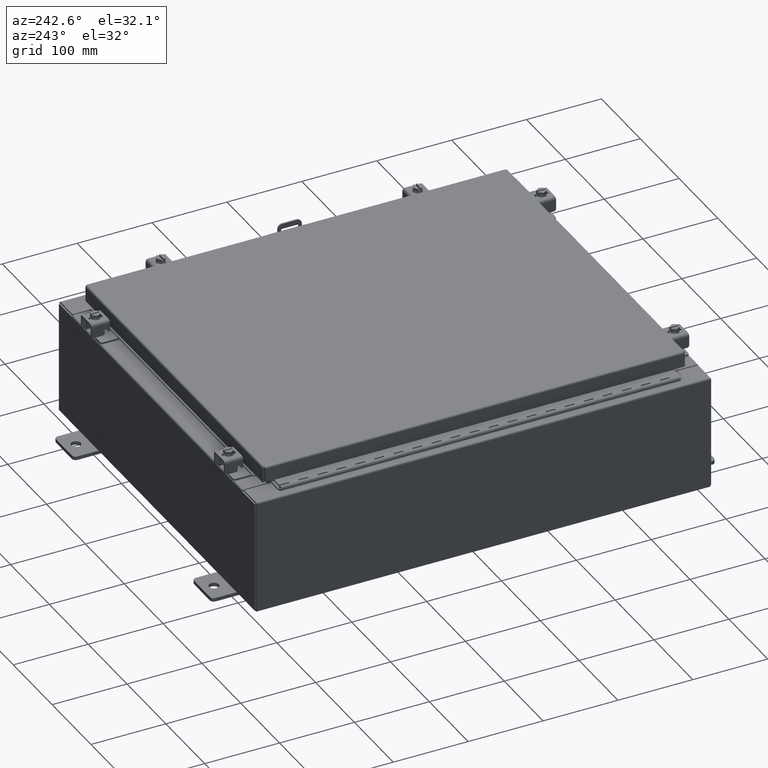
[diagram: clean part render]
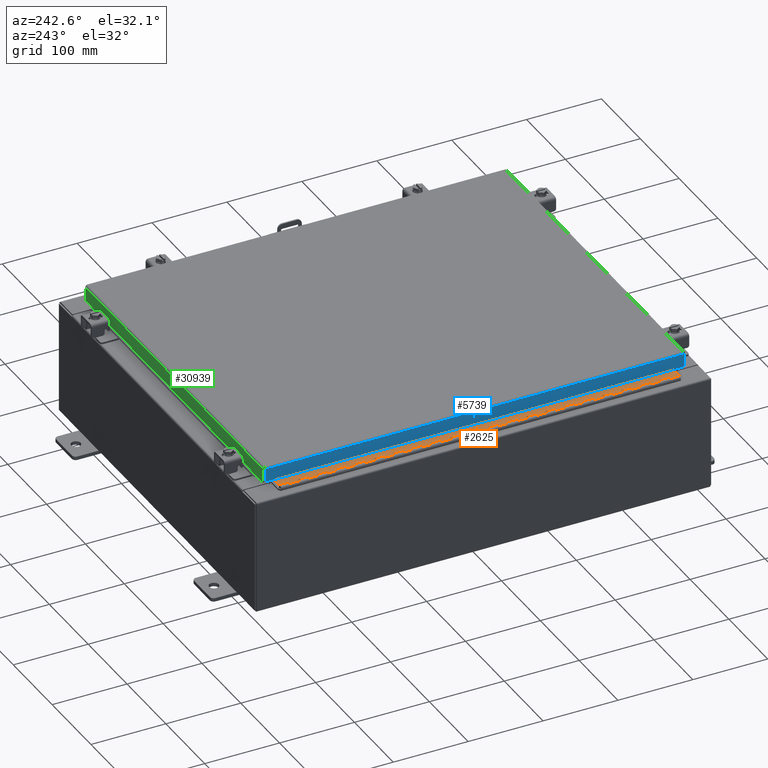
[diagram: same view with three faces highlighted in distinct colors, each labeled with its STEP entity id]
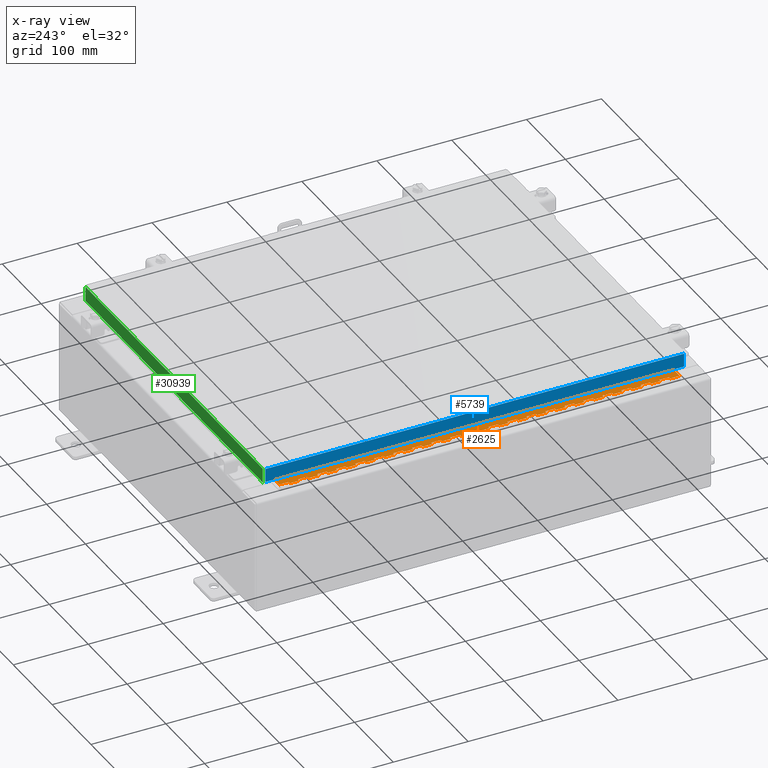
[diagram: x-ray of the same camera — body ghosted, the three highlighted faces saturated]
A machine part, auxiliary view with three faces highlighted in distinct colors.
The next image is the same camera in x-ray (body ghosted, the three faces saturated) — at least one of them is partly hidden behind the body in this view.
Their STEP definitions:

[orange] entity #2625 — the highlighted planar face has unit normal (-0, -0, 1).
#82 = VERTEX_POINT ( 'NONE', #17717 ) ;
#104 = CARTESIAN_POINT ( 'NONE',  ( -0.6869999999999973900, 0.8004999999999995500, -0.5000000000000000000 ) ) ;
#109 = ORIENTED_EDGE ( 'NONE', *, *, #12002, .T. ) ;
#116 = ORIENTED_EDGE ( 'NONE', *, *, #10477, .F. ) ;
#129 = CARTESIAN_POINT ( 'NONE',  ( -0.6869999999999978300, 0.6754999999999996600, 0.0000000000000000000 ) ) ;
#318 = VECTOR ( 'NONE', #21751, 39.37007874015748100 ) ;
#429 = EDGE_CURVE ( 'NONE', #20451, #3969, #29820, .T. ) ;
#453 = DIRECTION ( 'NONE',  ( 0.0000000000000000000, -0.0000000000000000000, -1.000000000000000000 ) ) ;
#523 = CARTESIAN_POINT ( 'NONE',  ( -0.6870000000000022800, -0.6245000000000003900, -21.00000000000000000 ) ) ;
#595 = VECTOR ( 'NONE', #26511, 39.37007874015748100 ) ;
#689 = CARTESIAN_POINT ( 'NONE',  ( -0.6869999999999973900, 0.8004999999999995500, -5.000000000000000000 ) ) ;
#727 = EDGE_CURVE ( 'NONE', #5754, #7995, #6377, .T. ) ;
#733 = CARTESIAN_POINT ( 'NONE',  ( -0.6869999999999978300, 0.6754999999999996600, -21.00000000000000000 ) ) ;
#791 = VECTOR ( 'NONE', #27098, 39.37007874015748100 ) ;
#871 = LINE ( 'NONE', #22071, #6847 ) ;
#920 = EDGE_CURVE ( 'NONE', #26896, #14308, #26615, .T. ) ;
#947 = ORIENTED_EDGE ( 'NONE', *, *, #7994, .F. ) ;
#1006 = LINE ( 'NONE', #32380, #26846 ) ;
#1047 = CARTESIAN_POINT ( 'NONE',  ( -0.6869999999999982800, 0.5504999999999997700, -11.99999999999999800 ) ) ;
#1053 = ORIENTED_EDGE ( 'NONE', *, *, #31830, .T. ) ;
#1064 = VECTOR ( 'NONE', #1115, 39.37007874015748100 ) ;
#1080 = DIRECTION ( 'NONE',  ( 0.0000000000000000000, 0.0000000000000000000, 1.000000000000000000 ) ) ;
#1087 = DIRECTION ( 'NONE',  ( 1.000000000000000000, -3.369016658928398200E-015, 0.0000000000000000000 ) ) ;
#1101 = DIRECTION ( 'NONE',  ( 3.389037039080723100E-015, 1.000000000000000000, -0.0000000000000000000 ) ) ;
#1115 = DIRECTION ( 'NONE',  ( -3.389037039080723100E-015, -1.000000000000000000, 0.0000000000000000000 ) ) ;
#1129 = CARTESIAN_POINT ( 'NONE',  ( -0.6869999999999982800, 0.5504999999999997700, -11.50000000000000000 ) ) ;
#1132 = CARTESIAN_POINT ( 'NONE',  ( -0.6869999999999982800, 0.5504999999999997700, -12.49999999999999800 ) ) ;
#1149 = LINE ( 'NONE', #32333, #13736 ) ;
#1262 = ORIENTED_EDGE ( 'NONE', *, *, #31102, .F. ) ;
#1287 = EDGE_LOOP ( 'NONE', ( #11579, #14761, #32210, #23919, #7231, #15053, #24107, #19546, #7020, #15214, #16476, #14268, #7577, #11960, #1812, #26353, #24284, #27470, #9643, #11283, #19907, #13981, #15574, #9474, #20440, #16105, #25557, #8910, #9159, #10681, #21164, #4917, #30003, #25385, #2277, #10596, #3959, #6846, #26360, #31843, #3833, #1622, #16870, #20763, #109, #11249, #5897, #11346, #3736, #30151, #1262, #23256, #25523, #23307, #23640, #31339, #21921, #11529, #25622, #18699, #1053, #31162, #3927, #28021, #12771, #7601, #5394, #21275, #11817, #28179, #21238, #947, #13286, #116, #25630, #17548, #21900, #2956, #14585, #32314, #21624, #31311, #8700, #2901, #13915, #26899 ) ) ;
#1360 = LINE ( 'NONE', #16342, #27186 ) ;
#1405 = VECTOR ( 'NONE', #8386, 39.37007874015748100 ) ;
#1416 = VERTEX_POINT ( 'NONE', #4723 ) ;
#1444 = CARTESIAN_POINT ( 'NONE',  ( -0.6869999999999982800, 0.5504999999999997700, -9.500000000000000000 ) ) ;
#1537 = CARTESIAN_POINT ( 'NONE',  ( -0.6869999999999982800, 0.5504999999999997700, -14.00000000000000000 ) ) ;
#1559 = EDGE_CURVE ( 'NONE', #18858, #25938, #23635, .T. ) ;
#1575 = PLANE ( 'NONE',  #1868 ) ;
#1578 = LINE ( 'NONE', #12197, #9871 ) ;
#1593 = EDGE_CURVE ( 'NONE', #30430, #14153, #16243, .T. ) ;
#1622 = ORIENTED_EDGE ( 'NONE', *, *, #22213, .F. ) ;
#1633 = DIRECTION ( 'NONE',  ( 0.0000000000000000000, -0.0000000000000000000, -1.000000000000000000 ) ) ;
#1783 = VERTEX_POINT ( 'NONE', #10621 ) ;
#1812 = ORIENTED_EDGE ( 'NONE', *, *, #27320, .F. ) ;
#1868 = AXIS2_PLACEMENT_3D ( 'NONE', #27535, #1087, #27888 ) ;
#1873 = LINE ( 'NONE', #11159, #1064 ) ;
#1909 = LINE ( 'NONE', #29385, #20262 ) ;
#1934 = LINE ( 'NONE', #11588, #27734 ) ;
#1958 = CARTESIAN_POINT ( 'NONE',  ( -0.6869999999999973900, 0.8004999999999995500, -17.50000000000000000 ) ) ;
#1987 = CARTESIAN_POINT ( 'NONE',  ( -0.6869999999999982800, 0.5504999999999997700, -10.50000000000000000 ) ) ;
#1988 = VERTEX_POINT ( 'NONE', #26819 ) ;
#2001 = LINE ( 'NONE', #5379, #6363 ) ;
#2002 = EDGE_CURVE ( 'NONE', #12756, #5217, #12752, .T. ) ;
#2025 = VERTEX_POINT ( 'NONE', #24079 ) ;
#2034 = LINE ( 'NONE', #5321, #8742 ) ;
#2054 = LINE ( 'NONE', #5136, #8764 ) ;
#2068 = LINE ( 'NONE', #26827, #27856 ) ;
#2075 = DIRECTION ( 'NONE',  ( 3.389037039080723100E-015, 1.000000000000000000, -0.0000000000000000000 ) ) ;
#2127 = EDGE_CURVE ( 'NONE', #8420, #7711, #21234, .T. ) ;
#2225 = LINE ( 'NONE', #14680, #14764 ) ;
#2276 = CARTESIAN_POINT ( 'NONE',  ( -0.6869999999999978300, 0.6754999999999996600, -11.99999999999999800 ) ) ;
#2277 = ORIENTED_EDGE ( 'NONE', *, *, #20782, .F. ) ;
#2625 = ADVANCED_FACE ( 'NONE', ( #15396 ), #1575, .T. ) ;
#2766 = LINE ( 'NONE', #7369, #21864 ) ;
#2860 = CARTESIAN_POINT ( 'NONE',  ( -0.6869999999999978300, 0.6754999999999996600, -21.00000000000000000 ) ) ;
#2901 = ORIENTED_EDGE ( 'NONE', *, *, #5903, .F. ) ;
#2956 = ORIENTED_EDGE ( 'NONE', *, *, #26282, .F. ) ;
#2973 = EDGE_CURVE ( 'NONE', #7648, #27906, #6039, .T. ) ;
#2990 = CARTESIAN_POINT ( 'NONE',  ( -0.6869999999999973900, 0.8004999999999995500, -17.00000000000000000 ) ) ;
#3051 = CARTESIAN_POINT ( 'NONE',  ( -0.6869999999999973900, 0.8004999999999995500, -2.000000000000000000 ) ) ;
#3052 = VECTOR ( 'NONE', #1080, 39.37007874015748100 ) ;
#3308 = CARTESIAN_POINT ( 'NONE',  ( -0.6869999999999982800, 0.5504999999999997700, -6.499999999999999100 ) ) ;
#3335 = VERTEX_POINT ( 'NONE', #16467 ) ;
#3430 = EDGE_CURVE ( 'NONE', #1416, #13391, #30994, .T. ) ;
#3452 = DIRECTION ( 'NONE',  ( 3.389037039080723100E-015, 1.000000000000000000, -0.0000000000000000000 ) ) ;
#3459 = VERTEX_POINT ( 'NONE', #8965 ) ;
#3482 = DIRECTION ( 'NONE',  ( 0.0000000000000000000, -0.0000000000000000000, -1.000000000000000000 ) ) ;
#3636 = DIRECTION ( 'NONE',  ( 0.0000000000000000000, 0.0000000000000000000, 1.000000000000000000 ) ) ;
#3724 = CARTESIAN_POINT ( 'NONE',  ( -0.6869999999999973900, 0.8004999999999995500, -1.499999999999999800 ) ) ;
#3736 = ORIENTED_EDGE ( 'NONE', *, *, #7110, .T. ) ;
#3833 = ORIENTED_EDGE ( 'NONE', *, *, #31563, .T. ) ;
#3872 = VERTEX_POINT ( 'NONE', #15693 ) ;
#3920 = LINE ( 'NONE', #104, #30528 ) ;
#3927 = ORIENTED_EDGE ( 'NONE', *, *, #14952, .F. ) ;
#3959 = ORIENTED_EDGE ( 'NONE', *, *, #8798, .T. ) ;
#3961 = VERTEX_POINT ( 'NONE', #17507 ) ;
#3969 = VERTEX_POINT ( 'NONE', #15029 ) ;
#3991 = CARTESIAN_POINT ( 'NONE',  ( -0.6869999999999982800, 0.5504999999999997700, -20.50000000000000400 ) ) ;
#4007 = VECTOR ( 'NONE', #26998, 39.37007874015748100 ) ;
#4018 = DIRECTION ( 'NONE',  ( 0.0000000000000000000, 0.0000000000000000000, 1.000000000000000000 ) ) ;
#4066 = LINE ( 'NONE', #5142, #29873 ) ;
#4103 = DIRECTION ( 'NONE',  ( -3.389037039080723100E-015, -1.000000000000000000, 0.0000000000000000000 ) ) ;
#4106 = EDGE_CURVE ( 'NONE', #26328, #1783, #6809, .T. ) ;
#4222 = EDGE_CURVE ( 'NONE', #20451, #23697, #2034, .T. ) ;
#4311 = VECTOR ( 'NONE', #21571, 39.37007874015748100 ) ;
#4360 = CARTESIAN_POINT ( 'NONE',  ( -0.6869999999999978300, 0.6754999999999996600, -13.50000000000000000 ) ) ;
#4476 = DIRECTION ( 'NONE',  ( 0.0000000000000000000, -0.0000000000000000000, -1.000000000000000000 ) ) ;
#4510 = CARTESIAN_POINT ( 'NONE',  ( -0.6869999999999982800, 0.5504999999999997700, -18.50000000000000000 ) ) ;
#4556 = LINE ( 'NONE', #23421, #28753 ) ;
#4617 = DIRECTION ( 'NONE',  ( 0.0000000000000000000, -0.0000000000000000000, -1.000000000000000000 ) ) ;
#4694 = VECTOR ( 'NONE', #31712, 39.37007874015748100 ) ;
#4723 = CARTESIAN_POINT ( 'NONE',  ( -0.6869999999999982800, 0.5504999999999997700, -10.00000000000000000 ) ) ;
#4822 = DIRECTION ( 'NONE',  ( 3.389037039080723100E-015, 1.000000000000000000, -0.0000000000000000000 ) ) ;
#4828 = EDGE_CURVE ( 'NONE', #4863, #13878, #2001, .T. ) ;
#4863 = VERTEX_POINT ( 'NONE', #25845 ) ;
#4880 = VERTEX_POINT ( 'NONE', #18400 ) ;
#4885 = VECTOR ( 'NONE', #1633, 39.37007874015748100 ) ;
#4917 = ORIENTED_EDGE ( 'NONE', *, *, #30533, .F. ) ;
#5037 = VECTOR ( 'NONE', #7068, 39.37007874015748100 ) ;
#5076 = VECTOR ( 'NONE', #13149, 39.37007874015748100 ) ;
#5136 = CARTESIAN_POINT ( 'NONE',  ( -0.6869999999999982800, 0.5504999999999997700, -11.50000000000000000 ) ) ;
#5142 = CARTESIAN_POINT ( 'NONE',  ( -0.6870000000000022800, -0.6245000000000003900, 0.0000000000000000000 ) ) ;
#5179 = LINE ( 'NONE', #28248, #30960 ) ;
#5217 = VERTEX_POINT ( 'NONE', #13836 ) ;
#5234 = CARTESIAN_POINT ( 'NONE',  ( -0.6869999999999978300, 0.6754999999999996600, -8.000000000000000000 ) ) ;
#5312 = LINE ( 'NONE', #523, #11197 ) ;
#5321 = CARTESIAN_POINT ( 'NONE',  ( -0.6869999999999973900, 0.8004999999999995500, -5.500000000000000000 ) ) ;
#5379 = CARTESIAN_POINT ( 'NONE',  ( -0.6869999999999973900, 0.8004999999999995500, -1.000000000000000000 ) ) ;
#5394 = ORIENTED_EDGE ( 'NONE', *, *, #32330, .F. ) ;
#5469 = CARTESIAN_POINT ( 'NONE',  ( -0.6869999999999982800, 0.5504999999999997700, -15.50000000000000000 ) ) ;
#5488 = LINE ( 'NONE', #11753, #4694 ) ;
#5513 = VECTOR ( 'NONE', #27359, 39.37007874015748100 ) ;
#5561 = EDGE_CURVE ( 'NONE', #11612, #6688, #20692, .T. ) ;
#5622 = VERTEX_POINT ( 'NONE', #16464 ) ;
#5754 = VERTEX_POINT ( 'NONE', #12048 ) ;
#5783 = DIRECTION ( 'NONE',  ( 3.389037039080723100E-015, 1.000000000000000000, -0.0000000000000000000 ) ) ;
#5790 = VERTEX_POINT ( 'NONE', #29601 ) ;
#5859 = EDGE_CURVE ( 'NONE', #8725, #14308, #25386, .T. ) ;
#5871 = LINE ( 'NONE', #15605, #5076 ) ;
#5897 = ORIENTED_EDGE ( 'NONE', *, *, #7070, .F. ) ;
#5903 = EDGE_CURVE ( 'NONE', #12980, #30775, #3920, .T. ) ;
#6010 = VERTEX_POINT ( 'NONE', #15568 ) ;
#6039 = LINE ( 'NONE', #16054, #24316 ) ;
#6046 = EDGE_CURVE ( 'NONE', #26194, #23392, #13316, .T. ) ;
#6155 = LINE ( 'NONE', #25507, #25240 ) ;
#6311 = DIRECTION ( 'NONE',  ( 0.0000000000000000000, 0.0000000000000000000, 1.000000000000000000 ) ) ;
#6363 = VECTOR ( 'NONE', #7909, 39.37007874015748100 ) ;
#6377 = LINE ( 'NONE', #19990, #32128 ) ;
#6569 = DIRECTION ( 'NONE',  ( 3.389037039080723100E-015, 1.000000000000000000, -0.0000000000000000000 ) ) ;
#6651 = VECTOR ( 'NONE', #4018, 39.37007874015748100 ) ;
#6688 = VERTEX_POINT ( 'NONE', #20958 ) ;
#6772 = VECTOR ( 'NONE', #24668, 39.37007874015748100 ) ;
#6788 = EDGE_CURVE ( 'NONE', #15205, #3335, #27682, .T. ) ;
#6805 = VERTEX_POINT ( 'NONE', #31395 ) ;
#6809 = LINE ( 'NONE', #1958, #25875 ) ;
#6840 = DIRECTION ( 'NONE',  ( 0.0000000000000000000, 0.0000000000000000000, 1.000000000000000000 ) ) ;
#6846 = ORIENTED_EDGE ( 'NONE', *, *, #32126, .F. ) ;
#6847 = VECTOR ( 'NONE', #24593, 39.37007874015748100 ) ;
#6884 = CARTESIAN_POINT ( 'NONE',  ( -0.6869999999999973900, 0.8004999999999995500, -2.500000000000000000 ) ) ;
#6900 = VERTEX_POINT ( 'NONE', #11668 ) ;
#6948 = VECTOR ( 'NONE', #22881, 39.37007874015748100 ) ;
#6976 = VECTOR ( 'NONE', #12845, 39.37007874015748100 ) ;
#7001 = CARTESIAN_POINT ( 'NONE',  ( -0.6869999999999982800, 0.5504999999999997700, -8.500000000000000000 ) ) ;
#7002 = VECTOR ( 'NONE', #5783, 39.37007874015748100 ) ;
#7020 = ORIENTED_EDGE ( 'NONE', *, *, #12902, .T. ) ;
#7068 = DIRECTION ( 'NONE',  ( -3.389037039080723100E-015, -1.000000000000000000, 0.0000000000000000000 ) ) ;
#7070 = EDGE_CURVE ( 'NONE', #8314, #1416, #20607, .T. ) ;
#7110 = EDGE_CURVE ( 'NONE', #16994, #6010, #19820, .T. ) ;
#7152 = EDGE_CURVE ( 'NONE', #14546, #5622, #11707, .T. ) ;
#7181 = VERTEX_POINT ( 'NONE', #14662 ) ;
#7231 = ORIENTED_EDGE ( 'NONE', *, *, #920, .T. ) ;
#7266 = CARTESIAN_POINT ( 'NONE',  ( -0.6869999999999978300, 0.6754999999999996600, -21.00000000000000000 ) ) ;
#7369 = CARTESIAN_POINT ( 'NONE',  ( -0.6869999999999973900, 0.8004999999999995500, -19.00000000000000000 ) ) ;
#7376 = EDGE_CURVE ( 'NONE', #26328, #6688, #18640, .T. ) ;
#7411 = VECTOR ( 'NONE', #14133, 39.37007874015748100 ) ;
#7577 = ORIENTED_EDGE ( 'NONE', *, *, #31134, .T. ) ;
#7601 = ORIENTED_EDGE ( 'NONE', *, *, #11780, .F. ) ;
#7648 = VERTEX_POINT ( 'NONE', #21345 ) ;
#7676 = LINE ( 'NONE', #25462, #13513 ) ;
#7690 = LINE ( 'NONE', #22640, #13523 ) ;
#7700 = CARTESIAN_POINT ( 'NONE',  ( -0.6869999999999978300, 0.6754999999999996600, -9.500000000000000000 ) ) ;
#7711 = VERTEX_POINT ( 'NONE', #24094 ) ;
#7742 = LINE ( 'NONE', #21151, #20143 ) ;
#7756 = CARTESIAN_POINT ( 'NONE',  ( -0.6869999999999978300, 0.6754999999999996600, -20.50000000000000400 ) ) ;
#7757 = CARTESIAN_POINT ( 'NONE',  ( -0.6869999999999982800, 0.5504999999999997700, -16.50000000000000000 ) ) ;
#7829 = VECTOR ( 'NONE', #6311, 39.37007874015748100 ) ;
#7890 = EDGE_CURVE ( 'NONE', #14153, #7181, #12834, .T. ) ;
#7909 = DIRECTION ( 'NONE',  ( 3.389037039080723100E-015, 1.000000000000000000, -0.0000000000000000000 ) ) ;
#7994 = EDGE_CURVE ( 'NONE', #6900, #15277, #7690, .T. ) ;
#7995 = VERTEX_POINT ( 'NONE', #5234 ) ;
#8005 = CARTESIAN_POINT ( 'NONE',  ( -0.6869999999999973900, 0.8004999999999995500, -8.500000000000000000 ) ) ;
#8058 = VECTOR ( 'NONE', #13138, 39.37007874015748100 ) ;
#8063 = CARTESIAN_POINT ( 'NONE',  ( -0.6869999999999982800, 0.5504999999999997700, -17.99999999999999600 ) ) ;
#8074 = DIRECTION ( 'NONE',  ( 0.0000000000000000000, 0.0000000000000000000, 1.000000000000000000 ) ) ;
#8179 = CARTESIAN_POINT ( 'NONE',  ( -0.6869999999999982800, 0.5504999999999997700, -7.499999999999999100 ) ) ;
#8239 = EDGE_CURVE ( 'NONE', #13270, #31309, #21237, .T. ) ;
#8314 = VERTEX_POINT ( 'NONE', #1444 ) ;
#8386 = DIRECTION ( 'NONE',  ( 0.0000000000000000000, -0.0000000000000000000, -1.000000000000000000 ) ) ;
#8420 = VERTEX_POINT ( 'NONE', #31975 ) ;
#8469 = DIRECTION ( 'NONE',  ( -3.389037039080723100E-015, -1.000000000000000000, 0.0000000000000000000 ) ) ;
#8582 = CARTESIAN_POINT ( 'NONE',  ( -0.6869999999999982800, 0.5504999999999997700, -20.50000000000000400 ) ) ;
#8688 = CARTESIAN_POINT ( 'NONE',  ( -0.6869999999999982800, 0.5504999999999997700, -6.000000000000000900 ) ) ;
#8700 = ORIENTED_EDGE ( 'NONE', *, *, #13819, .F. ) ;
#8725 = VERTEX_POINT ( 'NONE', #17220 ) ;
#8742 = VECTOR ( 'NONE', #25564, 39.37007874015748100 ) ;
#8764 = VECTOR ( 'NONE', #17521, 39.37007874015748100 ) ;
#8798 = EDGE_CURVE ( 'NONE', #18858, #14694, #24731, .T. ) ;
#8810 = EDGE_CURVE ( 'NONE', #3459, #11624, #4066, .T. ) ;
#8910 = ORIENTED_EDGE ( 'NONE', *, *, #16281, .F. ) ;
#8933 = CARTESIAN_POINT ( 'NONE',  ( -0.6869999999999978300, 0.6754999999999996600, -21.00000000000000000 ) ) ;
#8948 = LINE ( 'NONE', #18573, #3052 ) ;
#8965 = CARTESIAN_POINT ( 'NONE',  ( -0.6869999999999998300, 0.07549999999999991400, 0.0000000000000000000 ) ) ;
#9021 = CARTESIAN_POINT ( 'NONE',  ( -0.6869999999999978300, 0.6754999999999996600, -15.50000000000000000 ) ) ;
#9159 = ORIENTED_EDGE ( 'NONE', *, *, #10207, .T. ) ;
#9259 = VECTOR ( 'NONE', #21715, 39.37007874015748100 ) ;
#9387 = DIRECTION ( 'NONE',  ( 0.0000000000000000000, 0.0000000000000000000, 1.000000000000000000 ) ) ;
#9437 = DIRECTION ( 'NONE',  ( 0.0000000000000000000, -0.0000000000000000000, -1.000000000000000000 ) ) ;
#9474 = ORIENTED_EDGE ( 'NONE', *, *, #7152, .F. ) ;
#9489 = LINE ( 'NONE', #23591, #28578 ) ;
#9643 = ORIENTED_EDGE ( 'NONE', *, *, #15611, .F. ) ;
#9693 = CARTESIAN_POINT ( 'NONE',  ( -0.6869999999999978300, 0.6754999999999996600, -14.99999999999999800 ) ) ;
#9712 = CARTESIAN_POINT ( 'NONE',  ( -0.6869999999999978300, 0.6754999999999996600, -21.00000000000000000 ) ) ;
#9871 = VECTOR ( 'NONE', #2075, 39.37007874015748100 ) ;
#9916 = VECTOR ( 'NONE', #10700, 39.37007874015748100 ) ;
#9978 = VERTEX_POINT ( 'NONE', #7757 ) ;
#10088 = DIRECTION ( 'NONE',  ( 0.0000000000000000000, 0.0000000000000000000, 1.000000000000000000 ) ) ;
#10148 = DIRECTION ( 'NONE',  ( 0.0000000000000000000, -0.0000000000000000000, -1.000000000000000000 ) ) ;
#10207 = EDGE_CURVE ( 'NONE', #23509, #5217, #9489, .T. ) ;
#10235 = VECTOR ( 'NONE', #4617, 39.37007874015748100 ) ;
#10477 = EDGE_CURVE ( 'NONE', #23583, #29234, #1578, .T. ) ;
#10596 = ORIENTED_EDGE ( 'NONE', *, *, #1559, .F. ) ;
#10621 = CARTESIAN_POINT ( 'NONE',  ( -0.6869999999999982800, 0.5504999999999997700, -17.50000000000000000 ) ) ;
#10633 = CARTESIAN_POINT ( 'NONE',  ( -0.6869999999999978300, 0.6754999999999996600, -5.500000000000000000 ) ) ;
#10675 = CARTESIAN_POINT ( 'NONE',  ( -0.6869999999999973900, 0.8004999999999995500, -16.50000000000000000 ) ) ;
#10681 = ORIENTED_EDGE ( 'NONE', *, *, #2002, .F. ) ;
#10691 = LINE ( 'NONE', #1987, #4007 ) ;
#10700 = DIRECTION ( 'NONE',  ( 0.0000000000000000000, 0.0000000000000000000, 1.000000000000000000 ) ) ;
#10808 = CARTESIAN_POINT ( 'NONE',  ( -0.6869999999999978300, 0.6754999999999996600, -21.00000000000000000 ) ) ;
#10824 = LINE ( 'NONE', #31723, #24035 ) ;
#10967 = CARTESIAN_POINT ( 'NONE',  ( -0.6869999999999973900, 0.8004999999999995500, -10.50000000000000000 ) ) ;
#11025 = LINE ( 'NONE', #17124, #10235 ) ;
#11066 = CARTESIAN_POINT ( 'NONE',  ( -0.6869999999999978300, 0.6754999999999996600, -11.50000000000000000 ) ) ;
#11144 = VECTOR ( 'NONE', #22678, 39.37007874015748100 ) ;
#11159 = CARTESIAN_POINT ( 'NONE',  ( -0.6869999999999973900, 0.8004999999999995500, -13.50000000000000000 ) ) ;
#11197 = VECTOR ( 'NONE', #20520, 39.37007874015748100 ) ;
#11249 = ORIENTED_EDGE ( 'NONE', *, *, #3430, .F. ) ;
#11283 = ORIENTED_EDGE ( 'NONE', *, *, #21595, .F. ) ;
#11297 = CARTESIAN_POINT ( 'NONE',  ( -0.6869999999999973900, 0.8004999999999995500, -10.00000000000000000 ) ) ;
#11305 = VECTOR ( 'NONE', #20856, 39.37007874015748100 ) ;
#11346 = ORIENTED_EDGE ( 'NONE', *, *, #12895, .F. ) ;
#11349 = CARTESIAN_POINT ( 'NONE',  ( -0.6869999999999982800, 0.5504999999999997700, -14.49999999999999800 ) ) ;
#11355 = LINE ( 'NONE', #689, #30496 ) ;
#11418 = DIRECTION ( 'NONE',  ( -3.389037039080723100E-015, -1.000000000000000000, 0.0000000000000000000 ) ) ;
#11529 = ORIENTED_EDGE ( 'NONE', *, *, #2973, .F. ) ;
#11579 = ORIENTED_EDGE ( 'NONE', *, *, #31155, .F. ) ;
#11588 = CARTESIAN_POINT ( 'NONE',  ( -0.6869999999999973900, 0.8004999999999995500, -17.99999999999999600 ) ) ;
#11612 = VERTEX_POINT ( 'NONE', #30167 ) ;
#11624 = VERTEX_POINT ( 'NONE', #129 ) ;
#11668 = CARTESIAN_POINT ( 'NONE',  ( -0.6869999999999978300, 0.6754999999999996600, -3.500000000000000000 ) ) ;
#11707 = LINE ( 'NONE', #24452, #5037 ) ;
#11709 = LINE ( 'NONE', #25036, #16736 ) ;
#11753 = CARTESIAN_POINT ( 'NONE',  ( -0.6869999999999982800, 0.5504999999999997700, -18.50000000000000000 ) ) ;
#11780 = EDGE_CURVE ( 'NONE', #16014, #3969, #11355, .T. ) ;
#11817 = ORIENTED_EDGE ( 'NONE', *, *, #15786, .T. ) ;
#11930 = LINE ( 'NONE', #20183, #11144 ) ;
#11936 = EDGE_CURVE ( 'NONE', #23148, #26598, #21406, .T. ) ;
#11958 = LINE ( 'NONE', #3051, #31079 ) ;
#11960 = ORIENTED_EDGE ( 'NONE', *, *, #28776, .F. ) ;
#11974 = VECTOR ( 'NONE', #25521, 39.37007874015748100 ) ;
#12002 = EDGE_CURVE ( 'NONE', #17949, #13391, #25726, .T. ) ;
#12009 = CARTESIAN_POINT ( 'NONE',  ( -0.6869999999999973900, 0.8004999999999995500, -12.99999999999999800 ) ) ;
#12029 = VERTEX_POINT ( 'NONE', #26594 ) ;
#12048 = CARTESIAN_POINT ( 'NONE',  ( -0.6869999999999978300, 0.6754999999999996600, -8.500000000000000000 ) ) ;
#12050 = DIRECTION ( 'NONE',  ( 3.389037039080723100E-015, 1.000000000000000000, -0.0000000000000000000 ) ) ;
#12088 = VECTOR ( 'NONE', #22793, 39.37007874015748100 ) ;
#12169 = DIRECTION ( 'NONE',  ( -3.389037039080723100E-015, -1.000000000000000000, 0.0000000000000000000 ) ) ;
#12197 = CARTESIAN_POINT ( 'NONE',  ( -0.6869999999999973900, 0.8004999999999995500, -2.999999999999999600 ) ) ;
#12267 = VERTEX_POINT ( 'NONE', #20001 ) ;
#12437 = DIRECTION ( 'NONE',  ( -3.389037039080723100E-015, -1.000000000000000000, 0.0000000000000000000 ) ) ;
#12605 = VECTOR ( 'NONE', #22207, 39.37007874015748100 ) ;
#12617 = VERTEX_POINT ( 'NONE', #28875 ) ;
#12659 = VERTEX_POINT ( 'NONE', #21495 ) ;
#12739 = VECTOR ( 'NONE', #453, 39.37007874015748100 ) ;
#12752 = LINE ( 'NONE', #24503, #11974 ) ;
#12756 = VERTEX_POINT ( 'NONE', #1537 ) ;
#12771 = ORIENTED_EDGE ( 'NONE', *, *, #429, .T. ) ;
#12834 = LINE ( 'NONE', #24724, #12605 ) ;
#12845 = DIRECTION ( 'NONE',  ( 0.0000000000000000000, 0.0000000000000000000, 1.000000000000000000 ) ) ;
#12895 = EDGE_CURVE ( 'NONE', #16994, #8314, #2225, .T. ) ;
#12902 = EDGE_CURVE ( 'NONE', #23148, #17473, #15526, .T. ) ;
#12980 = VERTEX_POINT ( 'NONE', #32478 ) ;
#13023 = CARTESIAN_POINT ( 'NONE',  ( -0.6869999999999978300, 0.6754999999999996600, -12.49999999999999800 ) ) ;
#13138 = DIRECTION ( 'NONE',  ( -3.389037039080723100E-015, -1.000000000000000000, 0.0000000000000000000 ) ) ;
#13149 = DIRECTION ( 'NONE',  ( 3.389037039080723100E-015, 1.000000000000000000, -0.0000000000000000000 ) ) ;
#13238 = CARTESIAN_POINT ( 'NONE',  ( -0.6869999999999978300, 0.6754999999999996600, -1.499999999999999800 ) ) ;
#13255 = CARTESIAN_POINT ( 'NONE',  ( -0.6869999999999982800, 0.5504999999999997700, -2.999999999999999600 ) ) ;
#13270 = VERTEX_POINT ( 'NONE', #8688 ) ;
#13286 = ORIENTED_EDGE ( 'NONE', *, *, #25644, .T. ) ;
#13316 = LINE ( 'NONE', #30683, #19104 ) ;
#13347 = DIRECTION ( 'NONE',  ( 0.0000000000000000000, -0.0000000000000000000, -1.000000000000000000 ) ) ;
#13391 = VERTEX_POINT ( 'NONE', #19188 ) ;
#13469 = VERTEX_POINT ( 'NONE', #22007 ) ;
#13513 = VECTOR ( 'NONE', #8074, 39.37007874015748100 ) ;
#13523 = VECTOR ( 'NONE', #30258, 39.37007874015748100 ) ;
#13631 = CARTESIAN_POINT ( 'NONE',  ( -0.6869999999999982800, 0.5504999999999997700, -14.49999999999999800 ) ) ;
#13634 = VERTEX_POINT ( 'NONE', #22658 ) ;
#13736 = VECTOR ( 'NONE', #32439, 39.37007874015748100 ) ;
#13740 = CARTESIAN_POINT ( 'NONE',  ( -0.6869999999999973900, 0.8004999999999995500, -6.000000000000000900 ) ) ;
#13819 = EDGE_CURVE ( 'NONE', #30775, #4863, #4556, .T. ) ;
#13836 = CARTESIAN_POINT ( 'NONE',  ( -0.6869999999999978300, 0.6754999999999996600, -14.00000000000000000 ) ) ;
#13878 = VERTEX_POINT ( 'NONE', #31127 ) ;
#13901 = CARTESIAN_POINT ( 'NONE',  ( -0.6869999999999982800, 0.5504999999999997700, -5.000000000000000000 ) ) ;
#13915 = ORIENTED_EDGE ( 'NONE', *, *, #15631, .T. ) ;
#13959 = LINE ( 'NONE', #20784, #18974 ) ;
#13981 = ORIENTED_EDGE ( 'NONE', *, *, #26735, .F. ) ;
#14133 = DIRECTION ( 'NONE',  ( 0.0000000000000000000, -0.0000000000000000000, -1.000000000000000000 ) ) ;
#14153 = VERTEX_POINT ( 'NONE', #24681 ) ;
#14206 = CARTESIAN_POINT ( 'NONE',  ( -0.6869999999999982800, 0.5504999999999997700, -8.000000000000000000 ) ) ;
#14268 = ORIENTED_EDGE ( 'NONE', *, *, #6046, .F. ) ;
#14308 = VERTEX_POINT ( 'NONE', #20407 ) ;
#14311 = VERTEX_POINT ( 'NONE', #8063 ) ;
#14328 = LINE ( 'NONE', #8005, #6948 ) ;
#14341 = EDGE_CURVE ( 'NONE', #7711, #25985, #31556, .T. ) ;
#14389 = DIRECTION ( 'NONE',  ( -3.389037039080723100E-015, -1.000000000000000000, 0.0000000000000000000 ) ) ;
#14495 = EDGE_CURVE ( 'NONE', #25985, #7995, #7742, .T. ) ;
#14546 = VERTEX_POINT ( 'NONE', #9021 ) ;
#14585 = ORIENTED_EDGE ( 'NONE', *, *, #7890, .F. ) ;
#14662 = CARTESIAN_POINT ( 'NONE',  ( -0.6869999999999982800, 0.5504999999999997700, -2.000000000000000000 ) ) ;
#14680 = CARTESIAN_POINT ( 'NONE',  ( -0.6869999999999973900, 0.8004999999999995500, -9.500000000000000000 ) ) ;
#14694 = VERTEX_POINT ( 'NONE', #2276 ) ;
#14742 = LINE ( 'NONE', #3308, #1405 ) ;
#14757 = DIRECTION ( 'NONE',  ( 0.0000000000000000000, 0.0000000000000000000, 1.000000000000000000 ) ) ;
#14761 = ORIENTED_EDGE ( 'NONE', *, *, #19792, .T. ) ;
#14764 = VECTOR ( 'NONE', #32148, 39.37007874015748100 ) ;
#14923 = CARTESIAN_POINT ( 'NONE',  ( -0.6869999999999973900, 0.8004999999999995500, -7.499999999999999100 ) ) ;
#14941 = VECTOR ( 'NONE', #28087, 39.37007874015748100 ) ;
#14952 = EDGE_CURVE ( 'NONE', #23697, #13270, #5179, .T. ) ;
#15029 = CARTESIAN_POINT ( 'NONE',  ( -0.6869999999999978300, 0.6754999999999996600, -5.000000000000000000 ) ) ;
#15053 = ORIENTED_EDGE ( 'NONE', *, *, #5859, .F. ) ;
#15168 = VECTOR ( 'NONE', #25152, 39.37007874015748100 ) ;
#15193 = CARTESIAN_POINT ( 'NONE',  ( -0.6869999999999973900, 0.8004999999999995500, -11.00000000000000000 ) ) ;
#15205 = VERTEX_POINT ( 'NONE', #4360 ) ;
#15214 = ORIENTED_EDGE ( 'NONE', *, *, #16238, .F. ) ;
#15277 = VERTEX_POINT ( 'NONE', #32185 ) ;
#15300 = VECTOR ( 'NONE', #30435, 39.37007874015748100 ) ;
#15396 = FACE_OUTER_BOUND ( 'NONE', #1287, .T. ) ;
#15484 = DIRECTION ( 'NONE',  ( 3.389037039080723100E-015, 1.000000000000000000, -0.0000000000000000000 ) ) ;
#15526 = LINE ( 'NONE', #9712, #20566 ) ;
#15547 = VECTOR ( 'NONE', #16419, 39.37007874015748100 ) ;
#15568 = CARTESIAN_POINT ( 'NONE',  ( -0.6869999999999978300, 0.6754999999999996600, -9.000000000000000000 ) ) ;
#15574 = ORIENTED_EDGE ( 'NONE', *, *, #26257, .F. ) ;
#15605 = CARTESIAN_POINT ( 'NONE',  ( -0.6869999999999973900, 0.8004999999999995500, -14.99999999999999800 ) ) ;
#15611 = EDGE_CURVE ( 'NONE', #9978, #11612, #26630, .T. ) ;
#15630 = DIRECTION ( 'NONE',  ( 3.389037039080723100E-015, 1.000000000000000000, -0.0000000000000000000 ) ) ;
#15631 = EDGE_CURVE ( 'NONE', #12980, #11624, #19963, .T. ) ;
#15650 = CARTESIAN_POINT ( 'NONE',  ( -0.6869999999999978300, 0.6754999999999996600, -2.999999999999999600 ) ) ;
#15693 = CARTESIAN_POINT ( 'NONE',  ( -0.6869999999999982800, 0.5504999999999997700, -19.00000000000000000 ) ) ;
#15737 = CARTESIAN_POINT ( 'NONE',  ( -0.6869999999999978300, 0.6754999999999996600, -6.499999999999999100 ) ) ;
#15786 = EDGE_CURVE ( 'NONE', #17883, #27640, #21896, .T. ) ;
#15873 = DIRECTION ( 'NONE',  ( 0.0000000000000000000, -0.0000000000000000000, -1.000000000000000000 ) ) ;
#15949 = VERTEX_POINT ( 'NONE', #8582 ) ;
#16014 = VERTEX_POINT ( 'NONE', #13901 ) ;
#16054 = CARTESIAN_POINT ( 'NONE',  ( -0.6869999999999973900, 0.8004999999999995500, -7.000000000000000000 ) ) ;
#16057 = LINE ( 'NONE', #15193, #29370 ) ;
#16105 = ORIENTED_EDGE ( 'NONE', *, *, #23564, .F. ) ;
#16186 = EDGE_CURVE ( 'NONE', #12267, #23583, #11025, .T. ) ;
#16238 = EDGE_CURVE ( 'NONE', #3872, #17473, #2766, .T. ) ;
#16243 = LINE ( 'NONE', #3724, #22059 ) ;
#16244 = CARTESIAN_POINT ( 'NONE',  ( -0.6869999999999973900, 0.8004999999999995500, -19.50000000000000000 ) ) ;
#16281 = EDGE_CURVE ( 'NONE', #23509, #19584, #1149, .T. ) ;
#16319 = LINE ( 'NONE', #23490, #11305 ) ;
#16342 = CARTESIAN_POINT ( 'NONE',  ( -0.6869999999999982800, 0.5504999999999997700, -4.500000000000000000 ) ) ;
#16419 = DIRECTION ( 'NONE',  ( 0.0000000000000000000, -0.0000000000000000000, -1.000000000000000000 ) ) ;
#16464 = CARTESIAN_POINT ( 'NONE',  ( -0.6869999999999982800, 0.5504999999999997700, -15.50000000000000000 ) ) ;
#16467 = CARTESIAN_POINT ( 'NONE',  ( -0.6869999999999978300, 0.6754999999999996600, -12.99999999999999800 ) ) ;
#16476 = ORIENTED_EDGE ( 'NONE', *, *, #23339, .F. ) ;
#16587 = CARTESIAN_POINT ( 'NONE',  ( -0.6869999999999978300, 0.6754999999999996600, -7.000000000000000000 ) ) ;
#16677 = VECTOR ( 'NONE', #28078, 39.37007874015748100 ) ;
#16736 = VECTOR ( 'NONE', #10148, 39.37007874015748100 ) ;
#16827 = VECTOR ( 'NONE', #18908, 39.37007874015748100 ) ;
#16870 = ORIENTED_EDGE ( 'NONE', *, *, #21409, .F. ) ;
#16994 = VERTEX_POINT ( 'NONE', #7700 ) ;
#17025 = CARTESIAN_POINT ( 'NONE',  ( -0.6869999999999978300, 0.6754999999999996600, -21.00000000000000000 ) ) ;
#17067 = LINE ( 'NONE', #10967, #28790 ) ;
#17095 = VECTOR ( 'NONE', #15873, 39.37007874015748100 ) ;
#17124 = CARTESIAN_POINT ( 'NONE',  ( -0.6869999999999982800, 0.5504999999999997700, -2.500000000000000000 ) ) ;
#17220 = CARTESIAN_POINT ( 'NONE',  ( -0.6869999999999982800, 0.5504999999999997700, -20.00000000000000000 ) ) ;
#17439 = CARTESIAN_POINT ( 'NONE',  ( -0.6869999999999978300, 0.6754999999999996600, -14.49999999999999800 ) ) ;
#17452 = EDGE_CURVE ( 'NONE', #23681, #20620, #27294, .T. ) ;
#17473 = VERTEX_POINT ( 'NONE', #26928 ) ;
#17507 = CARTESIAN_POINT ( 'NONE',  ( -0.6869999999999982800, 0.5504999999999997700, -16.00000000000000000 ) ) ;
#17521 = DIRECTION ( 'NONE',  ( 0.0000000000000000000, -0.0000000000000000000, -1.000000000000000000 ) ) ;
#17548 = ORIENTED_EDGE ( 'NONE', *, *, #28844, .F. ) ;
#17611 = DIRECTION ( 'NONE',  ( -3.389037039080723100E-015, -1.000000000000000000, 0.0000000000000000000 ) ) ;
#17717 = CARTESIAN_POINT ( 'NONE',  ( -0.6869999999999982800, 0.5504999999999997700, -6.499999999999999100 ) ) ;
#17775 = CARTESIAN_POINT ( 'NONE',  ( -0.6869999999999978300, 0.6754999999999996600, -4.000000000000000000 ) ) ;
#17883 = VERTEX_POINT ( 'NONE', #18791 ) ;
#17884 = EDGE_CURVE ( 'NONE', #19584, #4880, #28845, .T. ) ;
#17949 = VERTEX_POINT ( 'NONE', #29217 ) ;
#18056 = DIRECTION ( 'NONE',  ( 0.0000000000000000000, 0.0000000000000000000, 1.000000000000000000 ) ) ;
#18063 = VECTOR ( 'NONE', #20737, 39.37007874015748100 ) ;
#18228 = VECTOR ( 'NONE', #21837, 39.37007874015748100 ) ;
#18270 = CARTESIAN_POINT ( 'NONE',  ( -0.6869999999999978300, 0.6754999999999996600, -17.99999999999999600 ) ) ;
#18400 = CARTESIAN_POINT ( 'NONE',  ( -0.6869999999999982800, 0.5504999999999997700, -14.99999999999999800 ) ) ;
#18419 = VERTEX_POINT ( 'NONE', #1047 ) ;
#18573 = CARTESIAN_POINT ( 'NONE',  ( -0.6869999999999998300, 0.07549999999999991400, -21.00000000000000000 ) ) ;
#18640 = LINE ( 'NONE', #30296, #12088 ) ;
#18699 = ORIENTED_EDGE ( 'NONE', *, *, #24683, .F. ) ;
#18791 = CARTESIAN_POINT ( 'NONE',  ( -0.6869999999999978300, 0.6754999999999996600, -4.500000000000000000 ) ) ;
#18858 = VERTEX_POINT ( 'NONE', #13023 ) ;
#18908 = DIRECTION ( 'NONE',  ( 0.0000000000000000000, -0.0000000000000000000, -1.000000000000000000 ) ) ;
#18974 = VECTOR ( 'NONE', #20897, 39.37007874015748100 ) ;
#18979 = EDGE_CURVE ( 'NONE', #26896, #15949, #13959, .T. ) ;
#19023 = CARTESIAN_POINT ( 'NONE',  ( -0.6869999999999978300, 0.6754999999999996600, -2.500000000000000000 ) ) ;
#19104 = VECTOR ( 'NONE', #25606, 39.37007874015748100 ) ;
#19105 = CARTESIAN_POINT ( 'NONE',  ( -0.6869999999999982800, 0.5504999999999997700, -17.50000000000000000 ) ) ;
#19188 = CARTESIAN_POINT ( 'NONE',  ( -0.6869999999999978300, 0.6754999999999996600, -10.00000000000000000 ) ) ;
#19209 = DIRECTION ( 'NONE',  ( 0.0000000000000000000, -0.0000000000000000000, -1.000000000000000000 ) ) ;
#19300 = LINE ( 'NONE', #5469, #12739 ) ;
#19315 = CARTESIAN_POINT ( 'NONE',  ( -0.6869999999999978300, 0.6754999999999996600, -21.00000000000000000 ) ) ;
#19401 = LINE ( 'NONE', #22795, #6976 ) ;
#19479 = CARTESIAN_POINT ( 'NONE',  ( -0.6869999999999982800, 0.5504999999999997700, -0.5000000000000000000 ) ) ;
#19546 = ORIENTED_EDGE ( 'NONE', *, *, #11936, .F. ) ;
#19584 = VERTEX_POINT ( 'NONE', #13631 ) ;
#19762 = LINE ( 'NONE', #17025, #595 ) ;
#19792 = EDGE_CURVE ( 'NONE', #12617, #22377, #5312, .T. ) ;
#19820 = LINE ( 'NONE', #29306, #26484 ) ;
#19907 = ORIENTED_EDGE ( 'NONE', *, *, #23449, .T. ) ;
#19908 = VECTOR ( 'NONE', #15630, 39.37007874015748100 ) ;
#19963 = LINE ( 'NONE', #22159, #6772 ) ;
#19990 = CARTESIAN_POINT ( 'NONE',  ( -0.6869999999999978300, 0.6754999999999996600, -21.00000000000000000 ) ) ;
#20001 = CARTESIAN_POINT ( 'NONE',  ( -0.6869999999999982800, 0.5504999999999997700, -2.500000000000000000 ) ) ;
#20143 = VECTOR ( 'NONE', #23692, 39.37007874015748100 ) ;
#20183 = CARTESIAN_POINT ( 'NONE',  ( -0.6869999999999978300, 0.6754999999999996600, -21.00000000000000000 ) ) ;
#20262 = VECTOR ( 'NONE', #9437, 39.37007874015748100 ) ;
#20285 = LINE ( 'NONE', #6884, #318 ) ;
#20407 = CARTESIAN_POINT ( 'NONE',  ( -0.6869999999999978300, 0.6754999999999996600, -20.00000000000000000 ) ) ;
#20410 = LINE ( 'NONE', #10675, #14941 ) ;
#20440 = ORIENTED_EDGE ( 'NONE', *, *, #27613, .T. ) ;
#20451 = VERTEX_POINT ( 'NONE', #10633 ) ;
#20520 = DIRECTION ( 'NONE',  ( 3.369016658928398200E-015, 1.000000000000000000, 0.0000000000000000000 ) ) ;
#20540 = VECTOR ( 'NONE', #12169, 39.37007874015748100 ) ;
#20566 = VECTOR ( 'NONE', #26996, 39.37007874015748100 ) ;
#20607 = LINE ( 'NONE', #29077, #7411 ) ;
#20620 = VERTEX_POINT ( 'NONE', #1129 ) ;
#20646 = CARTESIAN_POINT ( 'NONE',  ( -0.6869999999999973900, 0.8004999999999995500, -9.000000000000000000 ) ) ;
#20692 = LINE ( 'NONE', #2990, #19908 ) ;
#20724 = CARTESIAN_POINT ( 'NONE',  ( -0.6869999999999978300, 0.6754999999999996600, -19.50000000000000000 ) ) ;
#20727 = VECTOR ( 'NONE', #9387, 39.37007874015748100 ) ;
#20737 = DIRECTION ( 'NONE',  ( 0.0000000000000000000, 0.0000000000000000000, 1.000000000000000000 ) ) ;
#20763 = ORIENTED_EDGE ( 'NONE', *, *, #31720, .F. ) ;
#20782 = EDGE_CURVE ( 'NONE', #25938, #6805, #2068, .T. ) ;
#20784 = CARTESIAN_POINT ( 'NONE',  ( -0.6869999999999973900, 0.8004999999999995500, -20.50000000000000400 ) ) ;
#20803 = CARTESIAN_POINT ( 'NONE',  ( -0.6869999999999982800, 0.5504999999999997700, -21.00000000000000000 ) ) ;
#20856 = DIRECTION ( 'NONE',  ( 0.0000000000000000000, 0.0000000000000000000, 1.000000000000000000 ) ) ;
#20897 = DIRECTION ( 'NONE',  ( -3.389037039080723100E-015, -1.000000000000000000, 0.0000000000000000000 ) ) ;
#20958 = CARTESIAN_POINT ( 'NONE',  ( -0.6869999999999978300, 0.6754999999999996600, -17.00000000000000000 ) ) ;
#21151 = CARTESIAN_POINT ( 'NONE',  ( -0.6869999999999973900, 0.8004999999999995500, -8.000000000000000000 ) ) ;
#21164 = ORIENTED_EDGE ( 'NONE', *, *, #30903, .F. ) ;
#21234 = LINE ( 'NONE', #14923, #8058 ) ;
#21237 = LINE ( 'NONE', #13740, #26342 ) ;
#21238 = ORIENTED_EDGE ( 'NONE', *, *, #25604, .F. ) ;
#21260 = VERTEX_POINT ( 'NONE', #19023 ) ;
#21275 = ORIENTED_EDGE ( 'NONE', *, *, #31844, .F. ) ;
#21345 = CARTESIAN_POINT ( 'NONE',  ( -0.6869999999999982800, 0.5504999999999997700, -7.000000000000000000 ) ) ;
#21402 = VECTOR ( 'NONE', #14389, 39.37007874015748100 ) ;
#21406 = LINE ( 'NONE', #16244, #27298 ) ;
#21409 = EDGE_CURVE ( 'NONE', #23291, #23188, #10691, .T. ) ;
#21413 = VECTOR ( 'NONE', #14757, 39.37007874015748100 ) ;
#21428 = CARTESIAN_POINT ( 'NONE',  ( -0.6869999999999978300, 0.6754999999999996600, -21.00000000000000000 ) ) ;
#21495 = CARTESIAN_POINT ( 'NONE',  ( -0.6869999999999978300, 0.6754999999999996600, -16.00000000000000000 ) ) ;
#21571 = DIRECTION ( 'NONE',  ( 0.0000000000000000000, 0.0000000000000000000, 1.000000000000000000 ) ) ;
#21595 = EDGE_CURVE ( 'NONE', #23968, #9978, #20410, .T. ) ;
#21624 = ORIENTED_EDGE ( 'NONE', *, *, #26984, .T. ) ;
#21676 = EDGE_CURVE ( 'NONE', #8420, #27906, #24706, .T. ) ;
#21715 = DIRECTION ( 'NONE',  ( 0.0000000000000000000, 0.0000000000000000000, 1.000000000000000000 ) ) ;
#21751 = DIRECTION ( 'NONE',  ( -3.389037039080723100E-015, -1.000000000000000000, 0.0000000000000000000 ) ) ;
#21757 = LINE ( 'NONE', #22841, #15168 ) ;
#21837 = DIRECTION ( 'NONE',  ( 3.389037039080723100E-015, 1.000000000000000000, -0.0000000000000000000 ) ) ;
#21864 = VECTOR ( 'NONE', #4822, 39.37007874015748100 ) ;
#21896 = LINE ( 'NONE', #2860, #15300 ) ;
#21900 = ORIENTED_EDGE ( 'NONE', *, *, #30050, .T. ) ;
#21921 = ORIENTED_EDGE ( 'NONE', *, *, #21676, .T. ) ;
#22007 = CARTESIAN_POINT ( 'NONE',  ( -0.6869999999999978300, 0.6754999999999996600, -11.00000000000000000 ) ) ;
#22059 = VECTOR ( 'NONE', #11418, 39.37007874015748100 ) ;
#22071 = CARTESIAN_POINT ( 'NONE',  ( -0.6869999999999973900, 0.8004999999999995500, -16.00000000000000000 ) ) ;
#22159 = CARTESIAN_POINT ( 'NONE',  ( -0.6869999999999978300, 0.6754999999999996600, -21.00000000000000000 ) ) ;
#22207 = DIRECTION ( 'NONE',  ( 0.0000000000000000000, -0.0000000000000000000, -1.000000000000000000 ) ) ;
#22213 = EDGE_CURVE ( 'NONE', #23188, #13469, #16057, .T. ) ;
#22377 = VERTEX_POINT ( 'NONE', #20803 ) ;
#22608 = LINE ( 'NONE', #31707, #4311 ) ;
#22640 = CARTESIAN_POINT ( 'NONE',  ( -0.6869999999999973900, 0.8004999999999995500, -3.500000000000000000 ) ) ;
#22647 = CARTESIAN_POINT ( 'NONE',  ( -0.6869999999999978300, 0.6754999999999996600, -18.50000000000000000 ) ) ;
#22658 = CARTESIAN_POINT ( 'NONE',  ( -0.6869999999999978300, 0.6754999999999996600, -2.000000000000000000 ) ) ;
#22678 = DIRECTION ( 'NONE',  ( 0.0000000000000000000, 0.0000000000000000000, 1.000000000000000000 ) ) ;
#22701 = EDGE_CURVE ( 'NONE', #15949, #22377, #24214, .T. ) ;
#22793 = DIRECTION ( 'NONE',  ( 0.0000000000000000000, 0.0000000000000000000, 1.000000000000000000 ) ) ;
#22795 = CARTESIAN_POINT ( 'NONE',  ( -0.6869999999999978300, 0.6754999999999996600, -21.00000000000000000 ) ) ;
#22841 = CARTESIAN_POINT ( 'NONE',  ( -0.6869999999999973900, 0.8004999999999995500, -4.000000000000000000 ) ) ;
#22854 = VECTOR ( 'NONE', #28616, 39.37007874015748100 ) ;
#22881 = DIRECTION ( 'NONE',  ( -3.389037039080723100E-015, -1.000000000000000000, 0.0000000000000000000 ) ) ;
#23148 = VERTEX_POINT ( 'NONE', #20724 ) ;
#23188 = VERTEX_POINT ( 'NONE', #25872 ) ;
#23256 = ORIENTED_EDGE ( 'NONE', *, *, #32083, .F. ) ;
#23291 = VERTEX_POINT ( 'NONE', #31489 ) ;
#23307 = ORIENTED_EDGE ( 'NONE', *, *, #14495, .F. ) ;
#23339 = EDGE_CURVE ( 'NONE', #23392, #3872, #5488, .T. ) ;
#23392 = VERTEX_POINT ( 'NONE', #4510 ) ;
#23421 = CARTESIAN_POINT ( 'NONE',  ( -0.6869999999999982800, 0.5504999999999997700, -0.5000000000000000000 ) ) ;
#23449 = EDGE_CURVE ( 'NONE', #23968, #12659, #30505, .T. ) ;
#23490 = CARTESIAN_POINT ( 'NONE',  ( -0.6869999999999978300, 0.6754999999999996600, -21.00000000000000000 ) ) ;
#23509 = VERTEX_POINT ( 'NONE', #17439 ) ;
#23564 = EDGE_CURVE ( 'NONE', #4880, #31343, #5871, .T. ) ;
#23583 = VERTEX_POINT ( 'NONE', #13255 ) ;
#23591 = CARTESIAN_POINT ( 'NONE',  ( -0.6869999999999978300, 0.6754999999999996600, -21.00000000000000000 ) ) ;
#23635 = LINE ( 'NONE', #29628, #22854 ) ;
#23640 = ORIENTED_EDGE ( 'NONE', *, *, #14341, .F. ) ;
#23681 = VERTEX_POINT ( 'NONE', #11066 ) ;
#23692 = DIRECTION ( 'NONE',  ( 3.389037039080723100E-015, 1.000000000000000000, -0.0000000000000000000 ) ) ;
#23697 = VERTEX_POINT ( 'NONE', #31149 ) ;
#23919 = ORIENTED_EDGE ( 'NONE', *, *, #18979, .F. ) ;
#23968 = VERTEX_POINT ( 'NONE', #32095 ) ;
#24035 = VECTOR ( 'NONE', #19209, 39.37007874015748100 ) ;
#24079 = CARTESIAN_POINT ( 'NONE',  ( -0.6869999999999982800, 0.5504999999999997700, -4.000000000000000000 ) ) ;
#24094 = CARTESIAN_POINT ( 'NONE',  ( -0.6869999999999982800, 0.5504999999999997700, -7.499999999999999100 ) ) ;
#24102 = LINE ( 'NONE', #12009, #18228 ) ;
#24107 = ORIENTED_EDGE ( 'NONE', *, *, #30103, .F. ) ;
#24214 = LINE ( 'NONE', #3991, #16827 ) ;
#24284 = ORIENTED_EDGE ( 'NONE', *, *, #7376, .T. ) ;
#24316 = VECTOR ( 'NONE', #3452, 39.37007874015748100 ) ;
#24452 = CARTESIAN_POINT ( 'NONE',  ( -0.6869999999999973900, 0.8004999999999995500, -15.50000000000000000 ) ) ;
#24503 = CARTESIAN_POINT ( 'NONE',  ( -0.6869999999999973900, 0.8004999999999995500, -14.00000000000000000 ) ) ;
#24575 = EDGE_CURVE ( 'NONE', #6805, #3335, #24102, .T. ) ;
#24593 = DIRECTION ( 'NONE',  ( 3.389037039080723100E-015, 1.000000000000000000, -0.0000000000000000000 ) ) ;
#24668 = DIRECTION ( 'NONE',  ( 0.0000000000000000000, 0.0000000000000000000, 1.000000000000000000 ) ) ;
#24681 = CARTESIAN_POINT ( 'NONE',  ( -0.6869999999999982800, 0.5504999999999997700, -1.499999999999999800 ) ) ;
#24683 = EDGE_CURVE ( 'NONE', #24945, #82, #1006, .T. ) ;
#24706 = LINE ( 'NONE', #733, #18063 ) ;
#24724 = CARTESIAN_POINT ( 'NONE',  ( -0.6869999999999982800, 0.5504999999999997700, -1.499999999999999800 ) ) ;
#24731 = LINE ( 'NONE', #30057, #30668 ) ;
#24945 = VERTEX_POINT ( 'NONE', #15737 ) ;
#24970 = EDGE_CURVE ( 'NONE', #82, #7648, #14742, .T. ) ;
#25036 = CARTESIAN_POINT ( 'NONE',  ( -0.6869999999999982800, 0.5504999999999997700, -13.50000000000000000 ) ) ;
#25152 = DIRECTION ( 'NONE',  ( 3.389037039080723100E-015, 1.000000000000000000, -0.0000000000000000000 ) ) ;
#25240 = VECTOR ( 'NONE', #15484, 39.37007874015748100 ) ;
#25385 = ORIENTED_EDGE ( 'NONE', *, *, #24575, .F. ) ;
#25386 = LINE ( 'NONE', #29920, #5513 ) ;
#25462 = CARTESIAN_POINT ( 'NONE',  ( -0.6869999999999978300, 0.6754999999999996600, -21.00000000000000000 ) ) ;
#25507 = CARTESIAN_POINT ( 'NONE',  ( -0.6869999999999973900, 0.8004999999999995500, -11.99999999999999800 ) ) ;
#25521 = DIRECTION ( 'NONE',  ( 3.389037039080723100E-015, 1.000000000000000000, -0.0000000000000000000 ) ) ;
#25523 = ORIENTED_EDGE ( 'NONE', *, *, #727, .T. ) ;
#25557 = ORIENTED_EDGE ( 'NONE', *, *, #17884, .F. ) ;
#25564 = DIRECTION ( 'NONE',  ( -3.389037039080723100E-015, -1.000000000000000000, 0.0000000000000000000 ) ) ;
#25604 = EDGE_CURVE ( 'NONE', #15277, #2025, #10824, .T. ) ;
#25606 = DIRECTION ( 'NONE',  ( -3.389037039080723100E-015, -1.000000000000000000, 0.0000000000000000000 ) ) ;
#25622 = ORIENTED_EDGE ( 'NONE', *, *, #24970, .F. ) ;
#25630 = ORIENTED_EDGE ( 'NONE', *, *, #16186, .F. ) ;
#25644 = EDGE_CURVE ( 'NONE', #6900, #29234, #29158, .T. ) ;
#25645 = LINE ( 'NONE', #29618, #20540 ) ;
#25726 = LINE ( 'NONE', #21428, #6651 ) ;
#25735 = DIRECTION ( 'NONE',  ( 3.389037039080723100E-015, 1.000000000000000000, -0.0000000000000000000 ) ) ;
#25845 = CARTESIAN_POINT ( 'NONE',  ( -0.6869999999999982800, 0.5504999999999997700, -1.000000000000000000 ) ) ;
#25872 = CARTESIAN_POINT ( 'NONE',  ( -0.6869999999999982800, 0.5504999999999997700, -11.00000000000000000 ) ) ;
#25875 = VECTOR ( 'NONE', #4103, 39.37007874015748100 ) ;
#25938 = VERTEX_POINT ( 'NONE', #1132 ) ;
#25985 = VERTEX_POINT ( 'NONE', #14206 ) ;
#26086 = LINE ( 'NONE', #20646, #7002 ) ;
#26194 = VERTEX_POINT ( 'NONE', #22647 ) ;
#26257 = EDGE_CURVE ( 'NONE', #5622, #3961, #19300, .T. ) ;
#26282 = EDGE_CURVE ( 'NONE', #7181, #13634, #11958, .T. ) ;
#26328 = VERTEX_POINT ( 'NONE', #30691 ) ;
#26342 = VECTOR ( 'NONE', #1101, 39.37007874015748100 ) ;
#26353 = ORIENTED_EDGE ( 'NONE', *, *, #4106, .F. ) ;
#26360 = ORIENTED_EDGE ( 'NONE', *, *, #28129, .F. ) ;
#26484 = VECTOR ( 'NONE', #6840, 39.37007874015748100 ) ;
#26511 = DIRECTION ( 'NONE',  ( 0.0000000000000000000, 0.0000000000000000000, 1.000000000000000000 ) ) ;
#26594 = CARTESIAN_POINT ( 'NONE',  ( -0.6869999999999982800, 0.5504999999999997700, -13.50000000000000000 ) ) ;
#26598 = VERTEX_POINT ( 'NONE', #29123 ) ;
#26615 = LINE ( 'NONE', #29231, #20727 ) ;
#26630 = LINE ( 'NONE', #32146, #791 ) ;
#26735 = EDGE_CURVE ( 'NONE', #3961, #12659, #871, .T. ) ;
#26819 = CARTESIAN_POINT ( 'NONE',  ( -0.6869999999999982800, 0.5504999999999997700, -9.000000000000000000 ) ) ;
#26827 = CARTESIAN_POINT ( 'NONE',  ( -0.6869999999999982800, 0.5504999999999997700, -12.49999999999999800 ) ) ;
#26846 = VECTOR ( 'NONE', #12437, 39.37007874015748100 ) ;
#26879 = CARTESIAN_POINT ( 'NONE',  ( -0.6869999999999978300, 0.6754999999999996600, -6.000000000000000900 ) ) ;
#26896 = VERTEX_POINT ( 'NONE', #7756 ) ;
#26899 = ORIENTED_EDGE ( 'NONE', *, *, #8810, .F. ) ;
#26928 = CARTESIAN_POINT ( 'NONE',  ( -0.6869999999999978300, 0.6754999999999996600, -19.00000000000000000 ) ) ;
#26984 = EDGE_CURVE ( 'NONE', #30430, #13878, #7676, .T. ) ;
#26996 = DIRECTION ( 'NONE',  ( 0.0000000000000000000, 0.0000000000000000000, 1.000000000000000000 ) ) ;
#26998 = DIRECTION ( 'NONE',  ( 0.0000000000000000000, -0.0000000000000000000, -1.000000000000000000 ) ) ;
#27098 = DIRECTION ( 'NONE',  ( 0.0000000000000000000, -0.0000000000000000000, -1.000000000000000000 ) ) ;
#27186 = VECTOR ( 'NONE', #28798, 39.37007874015748100 ) ;
#27294 = LINE ( 'NONE', #31890, #21402 ) ;
#27298 = VECTOR ( 'NONE', #28571, 39.37007874015748100 ) ;
#27320 = EDGE_CURVE ( 'NONE', #1783, #14311, #32225, .T. ) ;
#27359 = DIRECTION ( 'NONE',  ( 3.389037039080723100E-015, 1.000000000000000000, -0.0000000000000000000 ) ) ;
#27470 = ORIENTED_EDGE ( 'NONE', *, *, #5561, .F. ) ;
#27535 = CARTESIAN_POINT ( 'NONE',  ( -0.6870000000000022800, -0.6245000000000003900, -21.00000000000000000 ) ) ;
#27613 = EDGE_CURVE ( 'NONE', #14546, #31343, #11930, .T. ) ;
#27640 = VERTEX_POINT ( 'NONE', #17775 ) ;
#27682 = LINE ( 'NONE', #8933, #7829 ) ;
#27734 = VECTOR ( 'NONE', #6569, 39.37007874015748100 ) ;
#27856 = VECTOR ( 'NONE', #4476, 39.37007874015748100 ) ;
#27888 = DIRECTION ( 'NONE',  ( 3.369016658928398200E-015, 1.000000000000000000, 0.0000000000000000000 ) ) ;
#27906 = VERTEX_POINT ( 'NONE', #16587 ) ;
#28021 = ORIENTED_EDGE ( 'NONE', *, *, #4222, .F. ) ;
#28026 = DIRECTION ( 'NONE',  ( 3.389037039080723100E-015, 1.000000000000000000, -0.0000000000000000000 ) ) ;
#28078 = DIRECTION ( 'NONE',  ( 0.0000000000000000000, -0.0000000000000000000, -1.000000000000000000 ) ) ;
#28087 = DIRECTION ( 'NONE',  ( -3.389037039080723100E-015, -1.000000000000000000, 0.0000000000000000000 ) ) ;
#28129 = EDGE_CURVE ( 'NONE', #20620, #18419, #2054, .T. ) ;
#28179 = ORIENTED_EDGE ( 'NONE', *, *, #30970, .F. ) ;
#28248 = CARTESIAN_POINT ( 'NONE',  ( -0.6869999999999982800, 0.5504999999999997700, -5.500000000000000000 ) ) ;
#28571 = DIRECTION ( 'NONE',  ( -3.389037039080723100E-015, -1.000000000000000000, 0.0000000000000000000 ) ) ;
#28578 = VECTOR ( 'NONE', #3636, 39.37007874015748100 ) ;
#28616 = DIRECTION ( 'NONE',  ( -3.389037039080723100E-015, -1.000000000000000000, 0.0000000000000000000 ) ) ;
#28753 = VECTOR ( 'NONE', #3482, 39.37007874015748100 ) ;
#28776 = EDGE_CURVE ( 'NONE', #14311, #32188, #1934, .T. ) ;
#28790 = VECTOR ( 'NONE', #8469, 39.37007874015748100 ) ;
#28798 = DIRECTION ( 'NONE',  ( 0.0000000000000000000, -0.0000000000000000000, -1.000000000000000000 ) ) ;
#28844 = EDGE_CURVE ( 'NONE', #21260, #12267, #20285, .T. ) ;
#28845 = LINE ( 'NONE', #11349, #15547 ) ;
#28875 = CARTESIAN_POINT ( 'NONE',  ( -0.6869999999999998300, 0.07549999999999991400, -21.00000000000000000 ) ) ;
#29077 = CARTESIAN_POINT ( 'NONE',  ( -0.6869999999999982800, 0.5504999999999997700, -9.500000000000000000 ) ) ;
#29123 = CARTESIAN_POINT ( 'NONE',  ( -0.6869999999999982800, 0.5504999999999997700, -19.50000000000000000 ) ) ;
#29158 = LINE ( 'NONE', #19315, #9259 ) ;
#29217 = CARTESIAN_POINT ( 'NONE',  ( -0.6869999999999978300, 0.6754999999999996600, -10.50000000000000000 ) ) ;
#29231 = CARTESIAN_POINT ( 'NONE',  ( -0.6869999999999978300, 0.6754999999999996600, -21.00000000000000000 ) ) ;
#29234 = VERTEX_POINT ( 'NONE', #15650 ) ;
#29306 = CARTESIAN_POINT ( 'NONE',  ( -0.6869999999999978300, 0.6754999999999996600, -21.00000000000000000 ) ) ;
#29370 = VECTOR ( 'NONE', #30185, 39.37007874015748100 ) ;
#29385 = CARTESIAN_POINT ( 'NONE',  ( -0.6869999999999982800, 0.5504999999999997700, -19.50000000000000000 ) ) ;
#29601 = CARTESIAN_POINT ( 'NONE',  ( -0.6869999999999982800, 0.5504999999999997700, -4.500000000000000000 ) ) ;
#29618 = CARTESIAN_POINT ( 'NONE',  ( -0.6869999999999973900, 0.8004999999999995500, -4.500000000000000000 ) ) ;
#29628 = CARTESIAN_POINT ( 'NONE',  ( -0.6869999999999973900, 0.8004999999999995500, -12.49999999999999800 ) ) ;
#29820 = LINE ( 'NONE', #10808, #9916 ) ;
#29873 = VECTOR ( 'NONE', #30158, 39.37007874015748100 ) ;
#29920 = CARTESIAN_POINT ( 'NONE',  ( -0.6869999999999973900, 0.8004999999999995500, -20.00000000000000000 ) ) ;
#30003 = ORIENTED_EDGE ( 'NONE', *, *, #6788, .T. ) ;
#30050 = EDGE_CURVE ( 'NONE', #21260, #13634, #22608, .T. ) ;
#30057 = CARTESIAN_POINT ( 'NONE',  ( -0.6869999999999978300, 0.6754999999999996600, -21.00000000000000000 ) ) ;
#30103 = EDGE_CURVE ( 'NONE', #26598, #8725, #1909, .T. ) ;
#30151 = ORIENTED_EDGE ( 'NONE', *, *, #31043, .F. ) ;
#30158 = DIRECTION ( 'NONE',  ( 3.369016658928398200E-015, 1.000000000000000000, 0.0000000000000000000 ) ) ;
#30167 = CARTESIAN_POINT ( 'NONE',  ( -0.6869999999999982800, 0.5504999999999997700, -17.00000000000000000 ) ) ;
#30185 = DIRECTION ( 'NONE',  ( 3.389037039080723100E-015, 1.000000000000000000, -0.0000000000000000000 ) ) ;
#30226 = VECTOR ( 'NONE', #12050, 39.37007874015748100 ) ;
#30258 = DIRECTION ( 'NONE',  ( -3.389037039080723100E-015, -1.000000000000000000, 0.0000000000000000000 ) ) ;
#30296 = CARTESIAN_POINT ( 'NONE',  ( -0.6869999999999978300, 0.6754999999999996600, -21.00000000000000000 ) ) ;
#30430 = VERTEX_POINT ( 'NONE', #13238 ) ;
#30435 = DIRECTION ( 'NONE',  ( 0.0000000000000000000, 0.0000000000000000000, 1.000000000000000000 ) ) ;
#30445 = LINE ( 'NONE', #30868, #17095 ) ;
#30496 = VECTOR ( 'NONE', #25735, 39.37007874015748100 ) ;
#30505 = LINE ( 'NONE', #7266, #21413 ) ;
#30528 = VECTOR ( 'NONE', #17611, 39.37007874015748100 ) ;
#30533 = EDGE_CURVE ( 'NONE', #15205, #12029, #1873, .T. ) ;
#30668 = VECTOR ( 'NONE', #10088, 39.37007874015748100 ) ;
#30683 = CARTESIAN_POINT ( 'NONE',  ( -0.6869999999999973900, 0.8004999999999995500, -18.50000000000000000 ) ) ;
#30691 = CARTESIAN_POINT ( 'NONE',  ( -0.6869999999999978300, 0.6754999999999996600, -17.50000000000000000 ) ) ;
#30737 = VERTEX_POINT ( 'NONE', #7001 ) ;
#30775 = VERTEX_POINT ( 'NONE', #19479 ) ;
#30868 = CARTESIAN_POINT ( 'NONE',  ( -0.6869999999999982800, 0.5504999999999997700, -8.500000000000000000 ) ) ;
#30903 = EDGE_CURVE ( 'NONE', #12029, #12756, #11709, .T. ) ;
#30960 = VECTOR ( 'NONE', #13347, 39.37007874015748100 ) ;
#30970 = EDGE_CURVE ( 'NONE', #2025, #27640, #21757, .T. ) ;
#30994 = LINE ( 'NONE', #11297, #30226 ) ;
#31043 = EDGE_CURVE ( 'NONE', #1988, #6010, #26086, .T. ) ;
#31079 = VECTOR ( 'NONE', #28026, 39.37007874015748100 ) ;
#31102 = EDGE_CURVE ( 'NONE', #30737, #1988, #30445, .T. ) ;
#31127 = CARTESIAN_POINT ( 'NONE',  ( -0.6869999999999978300, 0.6754999999999996600, -1.000000000000000000 ) ) ;
#31134 = EDGE_CURVE ( 'NONE', #26194, #32188, #16319, .T. ) ;
#31149 = CARTESIAN_POINT ( 'NONE',  ( -0.6869999999999982800, 0.5504999999999997700, -5.500000000000000000 ) ) ;
#31155 = EDGE_CURVE ( 'NONE', #12617, #3459, #8948, .T. ) ;
#31162 = ORIENTED_EDGE ( 'NONE', *, *, #8239, .F. ) ;
#31309 = VERTEX_POINT ( 'NONE', #26879 ) ;
#31311 = ORIENTED_EDGE ( 'NONE', *, *, #4828, .F. ) ;
#31339 = ORIENTED_EDGE ( 'NONE', *, *, #2127, .F. ) ;
#31343 = VERTEX_POINT ( 'NONE', #9693 ) ;
#31395 = CARTESIAN_POINT ( 'NONE',  ( -0.6869999999999982800, 0.5504999999999997700, -12.99999999999999800 ) ) ;
#31489 = CARTESIAN_POINT ( 'NONE',  ( -0.6869999999999982800, 0.5504999999999997700, -10.50000000000000000 ) ) ;
#31556 = LINE ( 'NONE', #8179, #16677 ) ;
#31563 = EDGE_CURVE ( 'NONE', #23681, #13469, #19401, .T. ) ;
#31707 = CARTESIAN_POINT ( 'NONE',  ( -0.6869999999999978300, 0.6754999999999996600, -21.00000000000000000 ) ) ;
#31712 = DIRECTION ( 'NONE',  ( 0.0000000000000000000, -0.0000000000000000000, -1.000000000000000000 ) ) ;
#31720 = EDGE_CURVE ( 'NONE', #17949, #23291, #17067, .T. ) ;
#31723 = CARTESIAN_POINT ( 'NONE',  ( -0.6869999999999982800, 0.5504999999999997700, -3.500000000000000000 ) ) ;
#31830 = EDGE_CURVE ( 'NONE', #24945, #31309, #19762, .T. ) ;
#31843 = ORIENTED_EDGE ( 'NONE', *, *, #17452, .F. ) ;
#31844 = EDGE_CURVE ( 'NONE', #17883, #5790, #25645, .T. ) ;
#31890 = CARTESIAN_POINT ( 'NONE',  ( -0.6869999999999973900, 0.8004999999999995500, -11.50000000000000000 ) ) ;
#31975 = CARTESIAN_POINT ( 'NONE',  ( -0.6869999999999978300, 0.6754999999999996600, -7.499999999999999100 ) ) ;
#32083 = EDGE_CURVE ( 'NONE', #5754, #30737, #14328, .T. ) ;
#32095 = CARTESIAN_POINT ( 'NONE',  ( -0.6869999999999978300, 0.6754999999999996600, -16.50000000000000000 ) ) ;
#32126 = EDGE_CURVE ( 'NONE', #18419, #14694, #6155, .T. ) ;
#32128 = VECTOR ( 'NONE', #18056, 39.37007874015748100 ) ;
#32146 = CARTESIAN_POINT ( 'NONE',  ( -0.6869999999999982800, 0.5504999999999997700, -16.50000000000000000 ) ) ;
#32148 = DIRECTION ( 'NONE',  ( -3.389037039080723100E-015, -1.000000000000000000, 0.0000000000000000000 ) ) ;
#32185 = CARTESIAN_POINT ( 'NONE',  ( -0.6869999999999982800, 0.5504999999999997700, -3.500000000000000000 ) ) ;
#32188 = VERTEX_POINT ( 'NONE', #18270 ) ;
#32210 = ORIENTED_EDGE ( 'NONE', *, *, #22701, .F. ) ;
#32225 = LINE ( 'NONE', #19105, #4885 ) ;
#32314 = ORIENTED_EDGE ( 'NONE', *, *, #1593, .F. ) ;
#32330 = EDGE_CURVE ( 'NONE', #5790, #16014, #1360, .T. ) ;
#32333 = CARTESIAN_POINT ( 'NONE',  ( -0.6869999999999973900, 0.8004999999999995500, -14.49999999999999800 ) ) ;
#32380 = CARTESIAN_POINT ( 'NONE',  ( -0.6869999999999973900, 0.8004999999999995500, -6.499999999999999100 ) ) ;
#32439 = DIRECTION ( 'NONE',  ( -3.389037039080723100E-015, -1.000000000000000000, 0.0000000000000000000 ) ) ;
#32478 = CARTESIAN_POINT ( 'NONE',  ( -0.6869999999999978300, 0.6754999999999996600, -0.5000000000000000000 ) ) ;

[blue] entity #5739 — the highlighted planar face has unit normal (1, 0, -0).
#215 = VERTEX_POINT ( 'NONE', #5023 ) ;
#863 = DIRECTION ( 'NONE',  ( 3.735695558659274900E-031, -1.000000000000000000, -1.101212895818006000E-045 ) ) ;
#1179 = LINE ( 'NONE', #28749, #7939 ) ;
#1767 = VERTEX_POINT ( 'NONE', #13242 ) ;
#1920 = DIRECTION ( 'NONE',  ( 1.000000000000000000, 3.735695558659274400E-031, -3.034122441942816500E-015 ) ) ;
#2460 = ORIENTED_EDGE ( 'NONE', *, *, #6289, .F. ) ;
#2461 = LINE ( 'NONE', #32055, #27481 ) ;
#2747 = FACE_OUTER_BOUND ( 'NONE', #9343, .T. ) ;
#2802 = AXIS2_PLACEMENT_3D ( 'NONE', #9417, #1920, #19389 ) ;
#2884 = EDGE_CURVE ( 'NONE', #23615, #20861, #2461, .T. ) ;
#5023 = CARTESIAN_POINT ( 'NONE',  ( -9.078000000000001200, -11.00515786437626700, -0.7949999999999996000 ) ) ;
#5340 = DIRECTION ( 'NONE',  ( -3.034122441942816500E-015, 6.982962677686265900E-015, -1.000000000000000000 ) ) ;
#5739 = ADVANCED_FACE ( 'NONE', ( #2747 ), #11932, .F. ) ;
#6289 = EDGE_CURVE ( 'NONE', #215, #20861, #12922, .T. ) ;
#7939 = VECTOR ( 'NONE', #23701, 39.37007874015748100 ) ;
#9343 = EDGE_LOOP ( 'NONE', ( #14016, #18619, #2460, #30688 ) ) ;
#9417 = CARTESIAN_POINT ( 'NONE',  ( -9.077999999999999400, -3.391264428150889200E-030, 2.780457718396847000E-014 ) ) ;
#10241 = EDGE_CURVE ( 'NONE', #1767, #215, #1179, .T. ) ;
#11932 = PLANE ( 'NONE',  #2802 ) ;
#12383 = VECTOR ( 'NONE', #863, 39.37007874015748100 ) ;
#12922 = LINE ( 'NONE', #26571, #25358 ) ;
#13242 = CARTESIAN_POINT ( 'NONE',  ( -9.077999999999999400, -11.00515786437626900, -0.08770000000000007000 ) ) ;
#14016 = ORIENTED_EDGE ( 'NONE', *, *, #19522, .F. ) ;
#18619 = ORIENTED_EDGE ( 'NONE', *, *, #2884, .T. ) ;
#19389 = DIRECTION ( 'NONE',  ( -3.034122441942816500E-015, 0.0000000000000000000, -1.000000000000000000 ) ) ;
#19522 = EDGE_CURVE ( 'NONE', #23615, #1767, #25605, .T. ) ;
#19697 = CARTESIAN_POINT ( 'NONE',  ( -9.078000000000001200, 11.00515786437627100, -0.7949999999999969300 ) ) ;
#20861 = VERTEX_POINT ( 'NONE', #19697 ) ;
#23334 = CARTESIAN_POINT ( 'NONE',  ( -9.077999999999999400, 11.00515786437626900, -0.08770000000000004200 ) ) ;
#23615 = VERTEX_POINT ( 'NONE', #23334 ) ;
#23701 = DIRECTION ( 'NONE',  ( -3.034122441942816500E-015, 6.982962677686265900E-015, -1.000000000000000000 ) ) ;
#25358 = VECTOR ( 'NONE', #29109, 39.37007874015748100 ) ;
#25605 = LINE ( 'NONE', #28327, #12383 ) ;
#26571 = CARTESIAN_POINT ( 'NONE',  ( -9.078000000000001200, -11.09400000000000100, -0.7949999999999997100 ) ) ;
#27481 = VECTOR ( 'NONE', #5340, 39.37007874015748100 ) ;
#28327 = CARTESIAN_POINT ( 'NONE',  ( -9.077999999999999400, -11.09400000000000100, -0.08770000000000004200 ) ) ;
#28749 = CARTESIAN_POINT ( 'NONE',  ( -9.077999999999999400, -11.00515786437627100, -0.07469999999999976700 ) ) ;
#29109 = DIRECTION ( 'NONE',  ( 4.379057701015054300E-047, 1.000000000000000000, 1.231227687788112300E-016 ) ) ;
#30688 = ORIENTED_EDGE ( 'NONE', *, *, #10241, .F. ) ;
#32055 = CARTESIAN_POINT ( 'NONE',  ( -9.077999999999999400, 11.00515786437626700, 1.046531838129534400E-013 ) ) ;

[green] entity #30939 — the highlighted planar face has unit normal (0, -1, -0).
#203 = DIRECTION ( 'NONE',  ( 3.605222026166233900E-031, -1.000000000000000000, -2.818880942772351900E-015 ) ) ;
#1834 = CARTESIAN_POINT ( 'NONE',  ( -9.077999999999999400, 11.09400000000000100, -0.8500000000000019800 ) ) ;
#2149 = AXIS2_PLACEMENT_3D ( 'NONE', #30234, #203, #17701 ) ;
#2601 = ORIENTED_EDGE ( 'NONE', *, *, #27740, .F. ) ;
#2717 = LINE ( 'NONE', #1834, #14456 ) ;
#2877 = EDGE_CURVE ( 'NONE', #29797, #3774, #30665, .T. ) ;
#3421 = LINE ( 'NONE', #7284, #9319 ) ;
#3774 = VERTEX_POINT ( 'NONE', #19807 ) ;
#5744 = VECTOR ( 'NONE', #6887, 39.37007874015748100 ) ;
#6887 = DIRECTION ( 'NONE',  ( -1.000000000000000000, -3.605222026166234800E-031, -9.826997386333231700E-046 ) ) ;
#7284 = CARTESIAN_POINT ( 'NONE',  ( -8.989157864376267100, 11.09399999999999900, -0.07469999999999978000 ) ) ;
#8056 = VERTEX_POINT ( 'NONE', #12908 ) ;
#9319 = VECTOR ( 'NONE', #29646, 39.37007874015748100 ) ;
#9720 = CARTESIAN_POINT ( 'NONE',  ( 8.989157864376267100, 11.09399999999999900, 3.153347883512804900E-014 ) ) ;
#10111 = LINE ( 'NONE', #9720, #21738 ) ;
#10752 = DIRECTION ( 'NONE',  ( 1.000000000000000000, -4.379057701015054300E-047, 1.278955053213606700E-016 ) ) ;
#10765 = CARTESIAN_POINT ( 'NONE',  ( -8.239157864376265300, 11.09399999999999800, -0.8500000000000046400 ) ) ;
#10818 = LINE ( 'NONE', #19257, #5744 ) ;
#11351 = ORIENTED_EDGE ( 'NONE', *, *, #32446, .F. ) ;
#12218 = DIRECTION ( 'NONE',  ( 0.0000000000000000000, 2.818880942772351900E-015, -1.000000000000000000 ) ) ;
#12775 = PLANE ( 'NONE',  #2149 ) ;
#12908 = CARTESIAN_POINT ( 'NONE',  ( 8.989157864376267100, 11.09399999999999900, -0.08770000000000007000 ) ) ;
#13085 = LINE ( 'NONE', #28262, #25527 ) ;
#14456 = VECTOR ( 'NONE', #16824, 39.37007874015748100 ) ;
#15759 = VECTOR ( 'NONE', #22736, 39.37007874015748100 ) ;
#15785 = ORIENTED_EDGE ( 'NONE', *, *, #31379, .F. ) ;
#16030 = CARTESIAN_POINT ( 'NONE',  ( 8.989157864376267100, 11.09400000000000100, -0.8499999999999996400 ) ) ;
#16824 = DIRECTION ( 'NONE',  ( 1.000000000000000000, -4.379057701015054300E-047, 1.278955053213606700E-016 ) ) ;
#17701 = DIRECTION ( 'NONE',  ( 0.0000000000000000000, 2.818880942772351900E-015, -1.000000000000000000 ) ) ;
#17844 = VERTEX_POINT ( 'NONE', #23607 ) ;
#19257 = CARTESIAN_POINT ( 'NONE',  ( -9.077999999999999400, 11.09399999999999900, -0.08770000000000007000 ) ) ;
#19485 = ORIENTED_EDGE ( 'NONE', *, *, #24619, .T. ) ;
#19807 = CARTESIAN_POINT ( 'NONE',  ( 8.239157864376267100, 11.09399999999999800, -0.8500000000000046400 ) ) ;
#20612 = VERTEX_POINT ( 'NONE', #16030 ) ;
#21738 = VECTOR ( 'NONE', #12218, 39.37007874015748100 ) ;
#22542 = FACE_OUTER_BOUND ( 'NONE', #30779, .T. ) ;
#22736 = DIRECTION ( 'NONE',  ( 1.000000000000000000, -0.0000000000000000000, -0.0000000000000000000 ) ) ;
#22842 = ORIENTED_EDGE ( 'NONE', *, *, #30090, .F. ) ;
#23607 = CARTESIAN_POINT ( 'NONE',  ( -8.989157864376267100, 11.09399999999999900, -0.08770000000000007000 ) ) ;
#24619 = EDGE_CURVE ( 'NONE', #8056, #20612, #10111, .T. ) ;
#25527 = VECTOR ( 'NONE', #10752, 39.37007874015748100 ) ;
#27095 = ORIENTED_EDGE ( 'NONE', *, *, #2877, .F. ) ;
#27740 = EDGE_CURVE ( 'NONE', #3774, #20612, #13085, .T. ) ;
#28262 = CARTESIAN_POINT ( 'NONE',  ( -9.077999999999999400, 11.09400000000000100, -0.8500000000000019800 ) ) ;
#29552 = VERTEX_POINT ( 'NONE', #29868 ) ;
#29646 = DIRECTION ( 'NONE',  ( -0.0000000000000000000, 2.818880942772351900E-015, -1.000000000000000000 ) ) ;
#29797 = VERTEX_POINT ( 'NONE', #10765 ) ;
#29868 = CARTESIAN_POINT ( 'NONE',  ( -8.989157864376267100, 11.09400000000000100, -0.8500000000000019800 ) ) ;
#30090 = EDGE_CURVE ( 'NONE', #29552, #29797, #2717, .T. ) ;
#30234 = CARTESIAN_POINT ( 'NONE',  ( -3.999633315828819900E-030, 11.09399999999999900, 3.153347883512804900E-014 ) ) ;
#30665 = LINE ( 'NONE', #31684, #15759 ) ;
#30779 = EDGE_LOOP ( 'NONE', ( #11351, #19485, #2601, #27095, #22842, #15785 ) ) ;
#30939 = ADVANCED_FACE ( 'NONE', ( #22542 ), #12775, .F. ) ;
#31379 = EDGE_CURVE ( 'NONE', #17844, #29552, #3421, .T. ) ;
#31684 = CARTESIAN_POINT ( 'NONE',  ( -8.239157864376267100, 11.09399999999999800, -0.8500000000000046400 ) ) ;
#32446 = EDGE_CURVE ( 'NONE', #8056, #17844, #10818, .T. ) ;